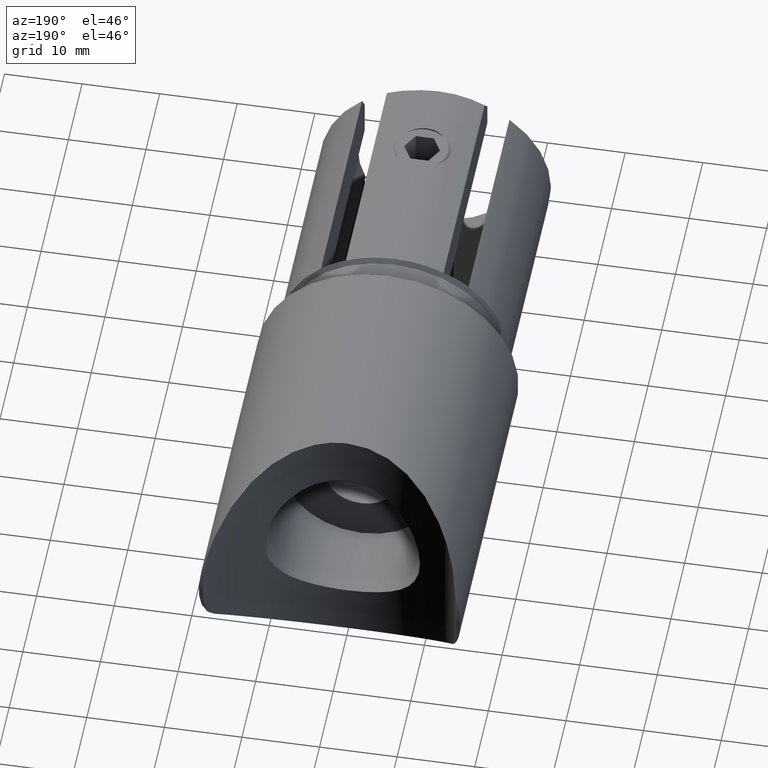
[diagram: clean part render]
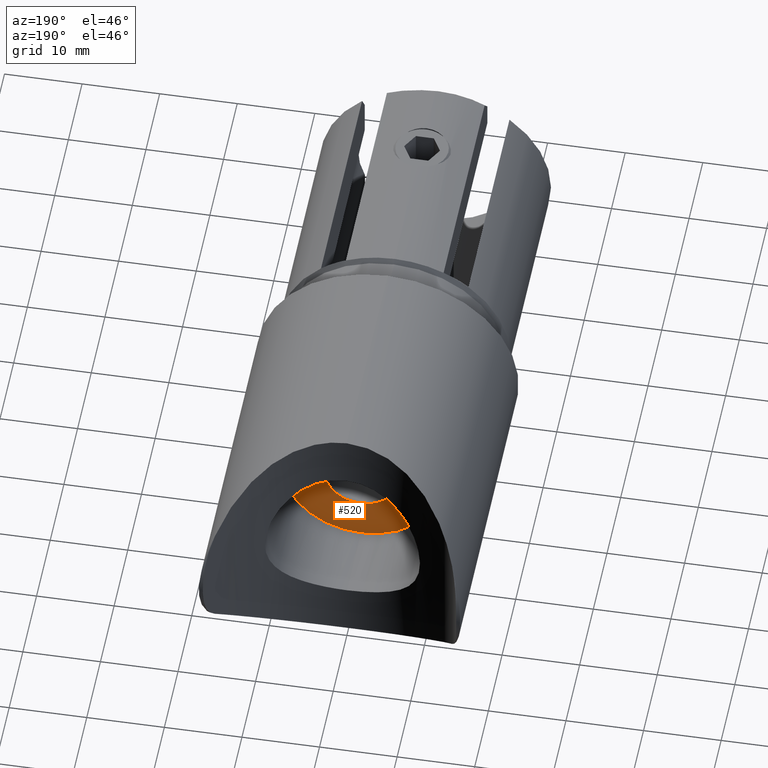
[diagram: same view with one face highlighted and labeled with its STEP entity id]
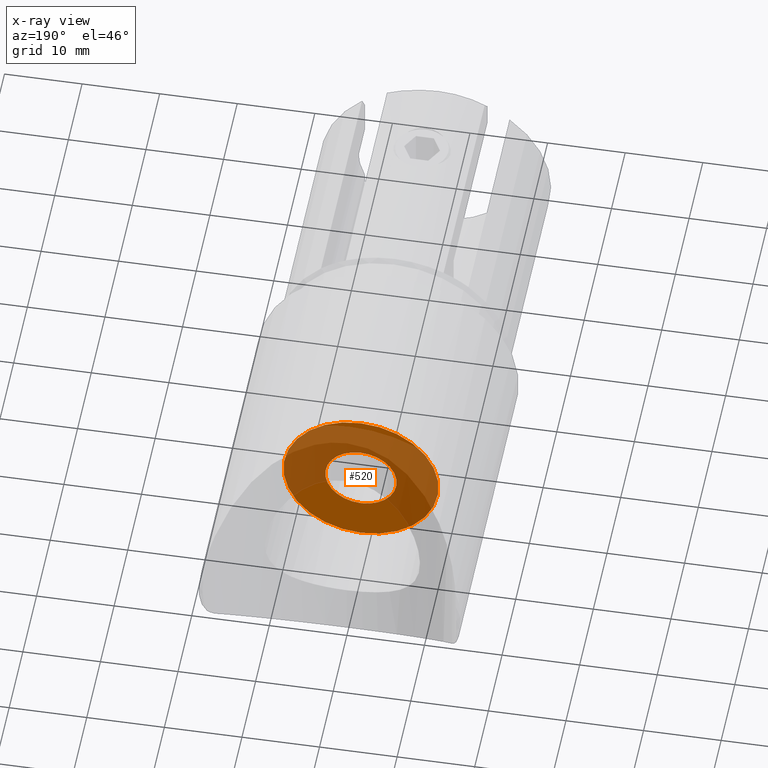
[diagram: x-ray of the same camera — body ghosted, the highlighted face saturated]
A machine part, auxiliary view. The second image highlights one B-rep face of the part: STEP entity #520.
The next image is the same camera in x-ray: the body ghosted, the highlighted face saturated — about 66% of this face is hidden behind the body in this view.
In plain terms, the highlighted planar face has unit normal (0, 1, 0).
Its self-contained STEP definition (entity closure, byte-faithful):
#520 = ADVANCED_FACE ( 'NONE', ( #9529, #3741 ), #12828, .T. ) ;
#1379 = CIRCLE ( 'NONE', #10177, 10.00000000000000000 ) ;
#1701 = CIRCLE ( 'NONE', #3871, 10.00000000000000000 ) ;
#1829 = CIRCLE ( 'NONE', #9827, 4.599999999999999600 ) ;
#2042 = DIRECTION ( 'NONE',  ( 0.0000000000000000000, 0.0000000000000000000, 1.000000000000000000 ) ) ;
#2382 = AXIS2_PLACEMENT_3D ( 'NONE', #7377, #10657, #6272 ) ;
#2439 = DIRECTION ( 'NONE',  ( 0.0000000000000000000, 1.000000000000000000, 0.0000000000000000000 ) ) ;
#2477 = CARTESIAN_POINT ( 'NONE',  ( 1.224646799147353300E-015, 19.69999999999999900, 10.00000000000000000 ) ) ;
#2528 = EDGE_CURVE ( 'NONE', #11439, #4030, #1701, .T. ) ;
#3072 = CARTESIAN_POINT ( 'NONE',  ( 0.0000000000000000000, 19.69999999999999900, 0.0000000000000000000 ) ) ;
#3128 = CARTESIAN_POINT ( 'NONE',  ( 0.0000000000000000000, 19.69999999999999900, 0.0000000000000000000 ) ) ;
#3138 = CARTESIAN_POINT ( 'NONE',  ( 0.0000000000000000000, 19.69999999999999900, 0.0000000000000000000 ) ) ;
#3179 = DIRECTION ( 'NONE',  ( 0.0000000000000000000, 1.000000000000000000, 0.0000000000000000000 ) ) ;
#3607 = ORIENTED_EDGE ( 'NONE', *, *, #7065, .T. ) ;
#3741 = FACE_OUTER_BOUND ( 'NONE', #11390, .T. ) ;
#3871 = AXIS2_PLACEMENT_3D ( 'NONE', #11031, #2439, #8895 ) ;
#4030 = VERTEX_POINT ( 'NONE', #12650 ) ;
#5561 = CARTESIAN_POINT ( 'NONE',  ( 0.0000000000000000000, 19.69999999999999900, 4.599999999999999600 ) ) ;
#5617 = EDGE_LOOP ( 'NONE', ( #6192, #6129 ) ) ;
#6129 = ORIENTED_EDGE ( 'NONE', *, *, #11296, .F. ) ;
#6192 = ORIENTED_EDGE ( 'NONE', *, *, #10677, .F. ) ;
#6196 = CIRCLE ( 'NONE', #2382, 4.599999999999999600 ) ;
#6272 = DIRECTION ( 'NONE',  ( 0.0000000000000000000, 0.0000000000000000000, 1.000000000000000000 ) ) ;
#6292 = DIRECTION ( 'NONE',  ( 0.0000000000000000000, 1.000000000000000000, 0.0000000000000000000 ) ) ;
#6746 = VERTEX_POINT ( 'NONE', #5561 ) ;
#7065 = EDGE_CURVE ( 'NONE', #4030, #11439, #1379, .T. ) ;
#7377 = CARTESIAN_POINT ( 'NONE',  ( 0.0000000000000000000, 19.69999999999999900, 0.0000000000000000000 ) ) ;
#8342 = CARTESIAN_POINT ( 'NONE',  ( 5.633375276077824100E-016, 19.69999999999999900, -4.599999999999999600 ) ) ;
#8895 = DIRECTION ( 'NONE',  ( 0.0000000000000000000, 0.0000000000000000000, 1.000000000000000000 ) ) ;
#9529 = FACE_BOUND ( 'NONE', #5617, .T. ) ;
#9827 = AXIS2_PLACEMENT_3D ( 'NONE', #3128, #6292, #2042 ) ;
#10177 = AXIS2_PLACEMENT_3D ( 'NONE', #3072, #10319, #12582 ) ;
#10319 = DIRECTION ( 'NONE',  ( 0.0000000000000000000, 1.000000000000000000, 0.0000000000000000000 ) ) ;
#10609 = VERTEX_POINT ( 'NONE', #8342 ) ;
#10657 = DIRECTION ( 'NONE',  ( 0.0000000000000000000, 1.000000000000000000, 0.0000000000000000000 ) ) ;
#10677 = EDGE_CURVE ( 'NONE', #6746, #10609, #6196, .T. ) ;
#10843 = AXIS2_PLACEMENT_3D ( 'NONE', #3138, #3179, #14125 ) ;
#11031 = CARTESIAN_POINT ( 'NONE',  ( 0.0000000000000000000, 19.69999999999999900, 0.0000000000000000000 ) ) ;
#11296 = EDGE_CURVE ( 'NONE', #10609, #6746, #1829, .T. ) ;
#11390 = EDGE_LOOP ( 'NONE', ( #3607, #12821 ) ) ;
#11439 = VERTEX_POINT ( 'NONE', #2477 ) ;
#12582 = DIRECTION ( 'NONE',  ( 0.0000000000000000000, 0.0000000000000000000, 1.000000000000000000 ) ) ;
#12650 = CARTESIAN_POINT ( 'NONE',  ( 0.0000000000000000000, 19.69999999999999900, -10.00000000000000000 ) ) ;
#12821 = ORIENTED_EDGE ( 'NONE', *, *, #2528, .T. ) ;
#12828 = PLANE ( 'NONE',  #10843 ) ;
#14125 = DIRECTION ( 'NONE',  ( 0.0000000000000000000, -0.0000000000000000000, 1.000000000000000000 ) ) ;